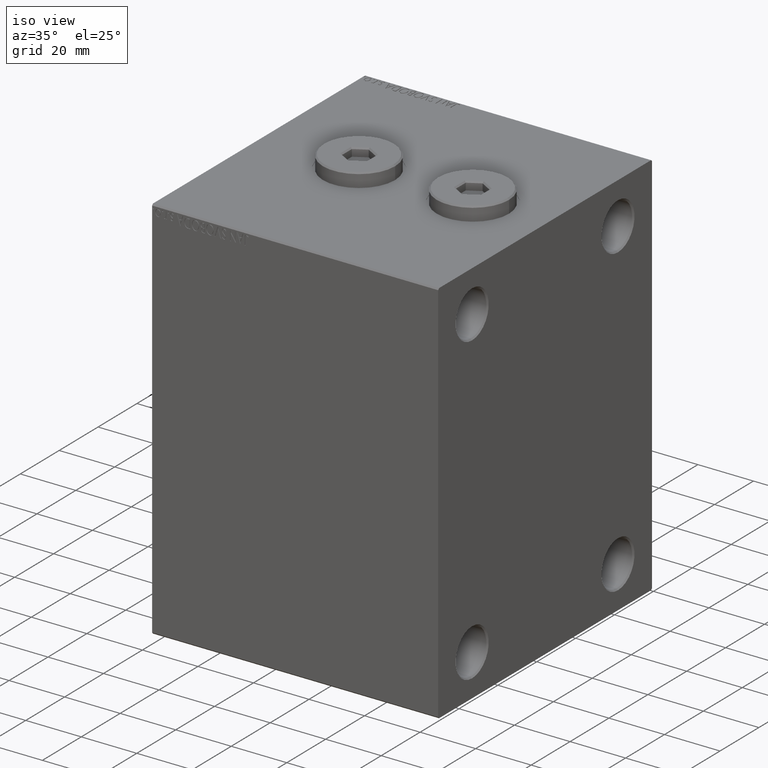
[diagram: clean part render]
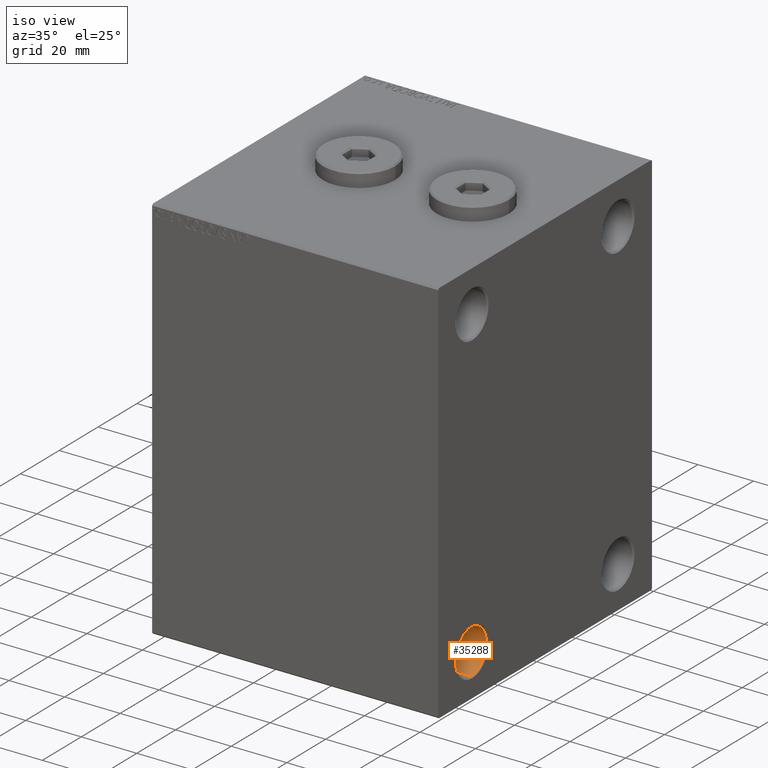
[diagram: same view with one face highlighted and labeled with its STEP entity id]
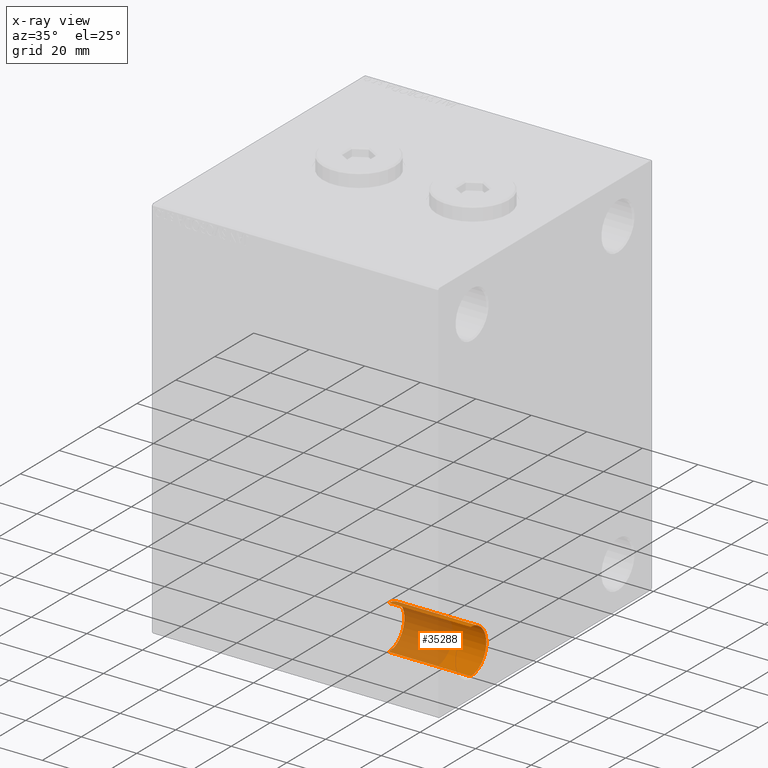
[diagram: x-ray of the same camera — body ghosted, the highlighted face saturated]
A machine part, iso view. The second image highlights one B-rep face of the part: STEP entity #35288.
The next image is the same camera in x-ray: the body ghosted, the highlighted face saturated — about 57% of this face is hidden behind the body in this view.
In plain terms, the highlighted cylindrical surface (edge-blend (fillet) strip) has radius 8 mm, axis along (1, 0, 0).
Its self-contained STEP definition (entity closure, byte-faithful):
#11388 = DIRECTION ( 'NONE',  ( -1.000000000000000000, 0.000000000000000000, 0.000000000000000000 ) ) ;
#11847 = EDGE_CURVE ( 'NONE', #45391, #19026, #41998, .T. ) ;
#11895 = CARTESIAN_POINT ( 'NONE',  ( 102.4999999999999858, -37.49999999999999289, -62.99999999999998579 ) ) ;
#13589 = AXIS2_PLACEMENT_3D ( 'NONE', #22415, #11388, #25409 ) ;
#14171 = AXIS2_PLACEMENT_3D ( 'NONE', #26987, #40585, #16643 ) ;
#14646 = DIRECTION ( 'NONE',  ( 1.000000000000000000, -0.000000000000000000, -0.000000000000000000 ) ) ;
#15306 = EDGE_CURVE ( 'NONE', #20744, #45391, #34552, .T. ) ;
#16643 = DIRECTION ( 'NONE',  ( 0.000000000000000000, 0.000000000000000000, 1.000000000000000000 ) ) ;
#19026 = VERTEX_POINT ( 'NONE', #11895 ) ;
#20744 = VERTEX_POINT ( 'NONE', #28503 ) ;
#22415 = CARTESIAN_POINT ( 'NONE',  ( 102.4999999999999858, -37.49999999999999289, -54.99999999999999289 ) ) ;
#23304 = EDGE_CURVE ( 'NONE', #20744, #44931, #26484, .T. ) ;
#25305 = ORIENTED_EDGE ( 'NONE', *, *, #11847, .T. ) ;
#25409 = DIRECTION ( 'NONE',  ( 0.000000000000000000, 0.000000000000000000, -1.000000000000000000 ) ) ;
#25443 = DIRECTION ( 'NONE',  ( 0.000000000000000000, 0.000000000000000000, 1.000000000000000000 ) ) ;
#26484 = LINE ( 'NONE', #40522, #29384 ) ;
#26987 = CARTESIAN_POINT ( 'NONE',  ( 103.0000000000000000, -37.49999999999999289, -54.99999999999999289 ) ) ;
#28503 = CARTESIAN_POINT ( 'NONE',  ( 73.00000000000000000, -37.49999999999999289, -47.00000000000000000 ) ) ;
#28889 = DIRECTION ( 'NONE',  ( -1.000000000000000000, 0.000000000000000000, 0.000000000000000000 ) ) ;
#29384 = VECTOR ( 'NONE', #14646, 1000.000000000000000 ) ;
#31396 = DIRECTION ( 'NONE',  ( 1.000000000000000000, -0.000000000000000000, -0.000000000000000000 ) ) ;
#31860 = CARTESIAN_POINT ( 'NONE',  ( 103.0000000000000000, -37.49999999999999289, -62.99999999999998579 ) ) ;
#34147 = CIRCLE ( 'NONE', #13589, 7.999999999999992895 ) ;
#34552 = CIRCLE ( 'NONE', #39672, 7.999999999999992895 ) ;
#35075 = CARTESIAN_POINT ( 'NONE',  ( 73.00000000000000000, -37.49999999999999289, -62.99999999999998579 ) ) ;
#35288 = ADVANCED_FACE ( 'NONE', ( #41260 ), #37806, .F. ) ;
#35928 = VECTOR ( 'NONE', #31396, 1000.000000000000000 ) ;
#37806 = CYLINDRICAL_SURFACE ( 'NONE', #14171, 7.999999999999992895 ) ;
#37997 = ORIENTED_EDGE ( 'NONE', *, *, #23304, .F. ) ;
#39414 = ORIENTED_EDGE ( 'NONE', *, *, #15306, .T. ) ;
#39672 = AXIS2_PLACEMENT_3D ( 'NONE', #42472, #28889, #25443 ) ;
#40522 = CARTESIAN_POINT ( 'NONE',  ( 103.0000000000000000, -37.49999999999999289, -47.00000000000000000 ) ) ;
#40585 = DIRECTION ( 'NONE',  ( 1.000000000000000000, -0.000000000000000000, -0.000000000000000000 ) ) ;
#40755 = CARTESIAN_POINT ( 'NONE',  ( 102.4999999999999858, -37.49999999999999289, -47.00000000000000000 ) ) ;
#40875 = ORIENTED_EDGE ( 'NONE', *, *, #44444, .F. ) ;
#41260 = FACE_OUTER_BOUND ( 'NONE', #44350, .T. ) ;
#41998 = LINE ( 'NONE', #31860, #35928 ) ;
#42472 = CARTESIAN_POINT ( 'NONE',  ( 73.00000000000000000, -37.49999999999999289, -54.99999999999999289 ) ) ;
#44350 = EDGE_LOOP ( 'NONE', ( #39414, #25305, #40875, #37997 ) ) ;
#44444 = EDGE_CURVE ( 'NONE', #44931, #19026, #34147, .T. ) ;
#44931 = VERTEX_POINT ( 'NONE', #40755 ) ;
#45391 = VERTEX_POINT ( 'NONE', #35075 ) ;